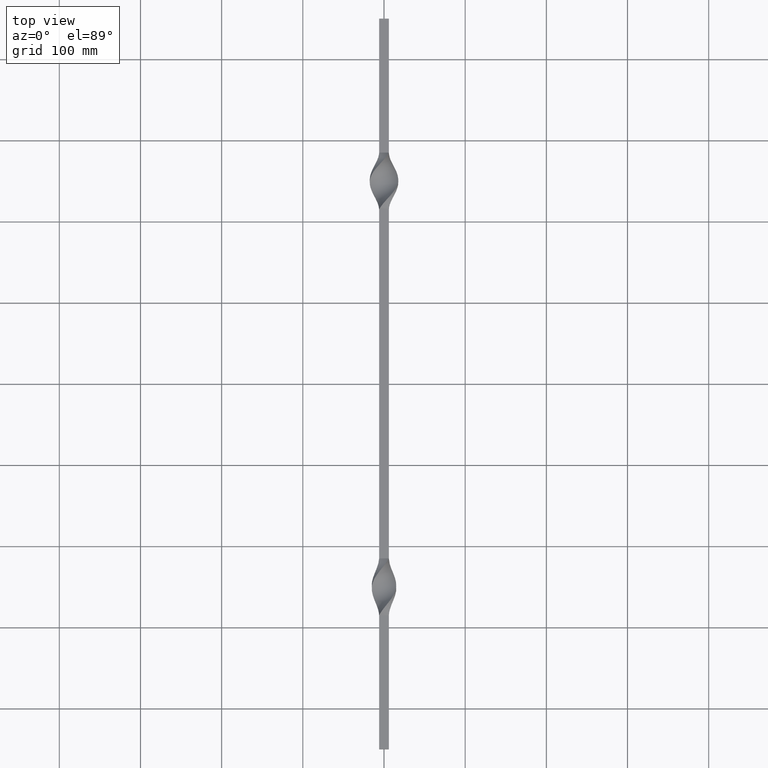
[diagram: clean part render]
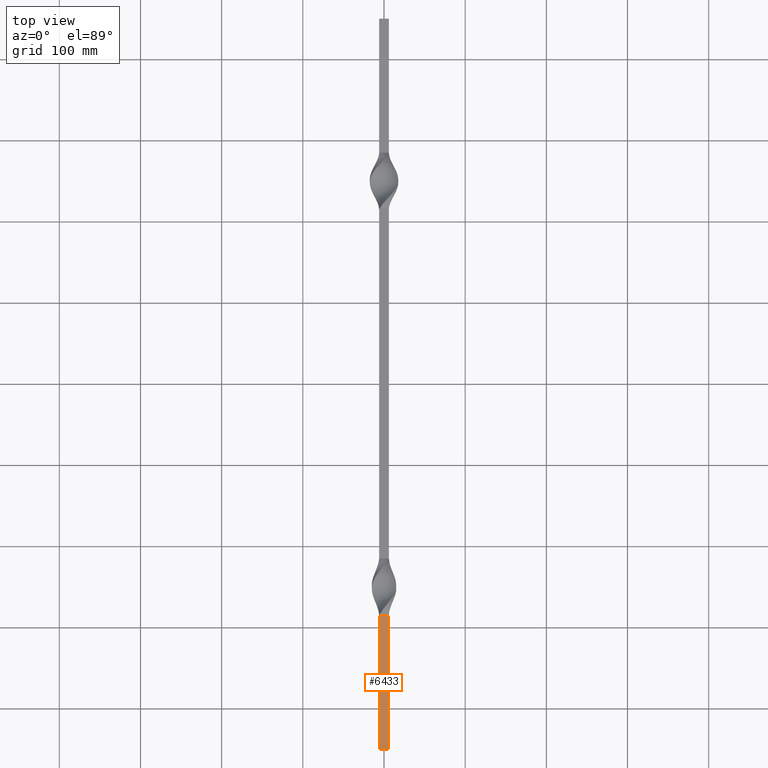
[diagram: same view with one face highlighted and labeled with its STEP entity id]
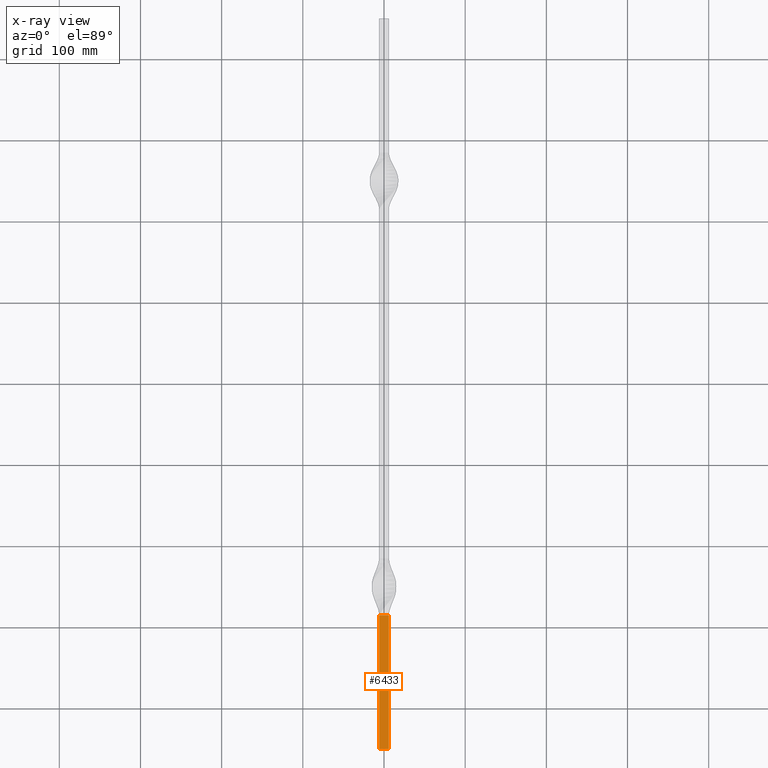
[diagram: x-ray of the same camera — body ghosted, the highlighted face saturated]
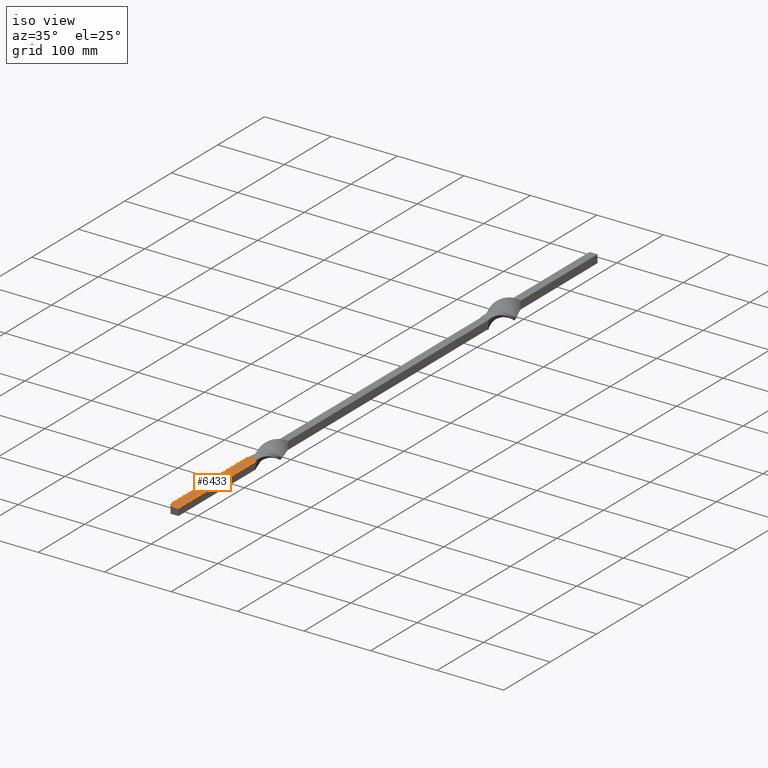
[diagram: same view with one face highlighted and labeled with its STEP entity id]
A machine part, top view. The second image highlights one B-rep face of the part: STEP entity #6433.
The next image is the same camera in x-ray: the body ghosted, the highlighted face saturated — about 0% of this face is hidden behind the body in this view.
A second angle (iso view) of the same face is appended — the face is thin or edge-on in the first view.
In plain terms, the highlighted planar face has unit normal (0, 0, -1).
Its self-contained STEP definition (entity closure, byte-faithful):
#185 = CARTESIAN_POINT ( 'NONE',  ( 6.000000000180522264, -450.0000000000000568, 6.000000000984897497 ) ) ;
#252 = DIRECTION ( 'NONE',  ( -2.202882637596677301E-16, 1.000000000000000000, 2.877999229000130997E-16 ) ) ;
#390 = ORIENTED_EDGE ( 'NONE', *, *, #2307, .F. ) ;
#636 = CARTESIAN_POINT ( 'NONE',  ( 6.000000000180522264, -450.0000000000000568, 6.000000000984897497 ) ) ;
#1178 = EDGE_LOOP ( 'NONE', ( #8697, #390, #10548, #7217 ) ) ;
#1222 = LINE ( 'NONE', #636, #1390 ) ;
#1390 = VECTOR ( 'NONE', #2355, 1000.000000000000000 ) ;
#1919 = VERTEX_POINT ( 'NONE', #8311 ) ;
#1981 = DIRECTION ( 'NONE',  ( 8.355456079809207405E-10, 2.877999230840740211E-16, -1.000000000000000000 ) ) ;
#2307 = EDGE_CURVE ( 'NONE', #10270, #1919, #9537, .T. ) ;
#2355 = DIRECTION ( 'NONE',  ( -2.202882637596677301E-16, 1.000000000000000000, 2.877999229000130997E-16 ) ) ;
#3104 = VECTOR ( 'NONE', #11773, 1000.000000000000000 ) ;
#3135 = CARTESIAN_POINT ( 'NONE',  ( 6.000000000180485848, -285.0000000000000568, 6.000000000984944570 ) ) ;
#3365 = LINE ( 'NONE', #10180, #8748 ) ;
#3562 = LINE ( 'NONE', #10730, #3104 ) ;
#4131 = EDGE_CURVE ( 'NONE', #12947, #10270, #3562, .T. ) ;
#5044 = DIRECTION ( 'NONE',  ( -1.000000000000000000, 0.000000000000000000, -8.355456079809207405E-10 ) ) ;
#5422 = FACE_OUTER_BOUND ( 'NONE', #1178, .T. ) ;
#5602 = VERTEX_POINT ( 'NONE', #3135 ) ;
#6148 = DIRECTION ( 'NONE',  ( 1.000000000000000000, 2.202882637596672864E-16, 1.493079894517851385E-15 ) ) ;
#6299 = CARTESIAN_POINT ( 'NONE',  ( -6.000000005786278123, -450.0000000000000568, 5.999999990958349905 ) ) ;
#6433 = ADVANCED_FACE ( 'NONE', ( #5422 ), #7912, .F. ) ;
#6734 = EDGE_CURVE ( 'NONE', #1919, #5602, #3365, .T. ) ;
#7217 = ORIENTED_EDGE ( 'NONE', *, *, #12092, .T. ) ;
#7912 = PLANE ( 'NONE',  #9431 ) ;
#8294 = VECTOR ( 'NONE', #252, 1000.000000000000000 ) ;
#8311 = CARTESIAN_POINT ( 'NONE',  ( -6.000000005786314539, -285.0000000116531282, 5.999999990958397866 ) ) ;
#8697 = ORIENTED_EDGE ( 'NONE', *, *, #6734, .F. ) ;
#8748 = VECTOR ( 'NONE', #6148, 1000.000000000000000 ) ;
#9431 = AXIS2_PLACEMENT_3D ( 'NONE', #10037, #1981, #5044 ) ;
#9537 = LINE ( 'NONE', #6299, #8294 ) ;
#10037 = CARTESIAN_POINT ( 'NONE',  ( 6.000000000180522264, -450.0000000000000568, 6.000000000984897497 ) ) ;
#10180 = CARTESIAN_POINT ( 'NONE',  ( 5.382367580439819512E-14, -285.0000000000000568, 5.999999999999921840 ) ) ;
#10270 = VERTEX_POINT ( 'NONE', #11931 ) ;
#10548 = ORIENTED_EDGE ( 'NONE', *, *, #4131, .F. ) ;
#10730 = CARTESIAN_POINT ( 'NONE',  ( 6.000000000180522264, -450.0000000000000568, 6.000000000984897497 ) ) ;
#11773 = DIRECTION ( 'NONE',  ( -1.000000000000000000, 0.000000000000000000, -8.355456079809207405E-10 ) ) ;
#11931 = CARTESIAN_POINT ( 'NONE',  ( -6.000000005786278123, -450.0000000000000568, 5.999999990958349905 ) ) ;
#12092 = EDGE_CURVE ( 'NONE', #12947, #5602, #1222, .T. ) ;
#12947 = VERTEX_POINT ( 'NONE', #185 ) ;